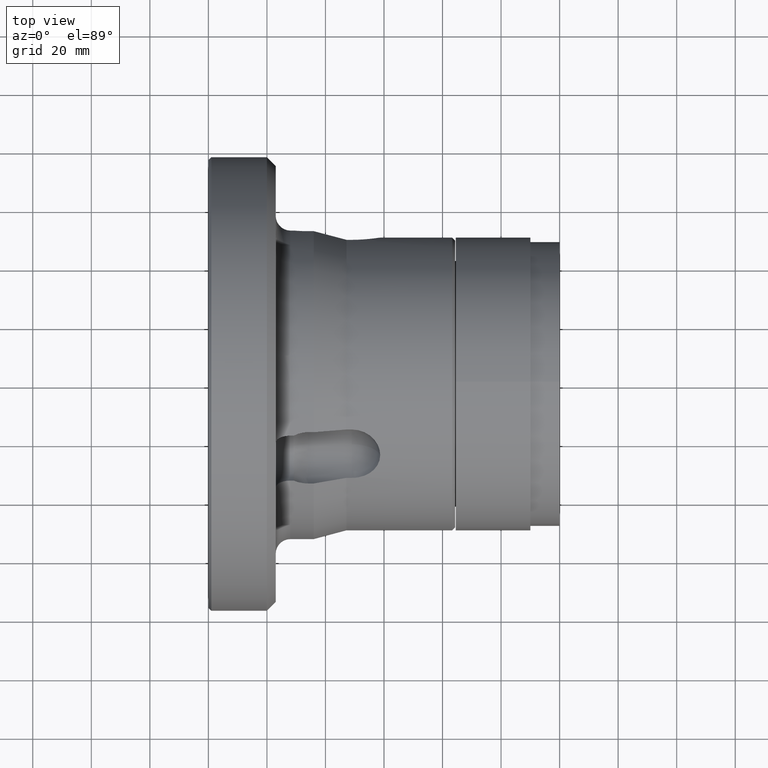
[diagram: clean part render]
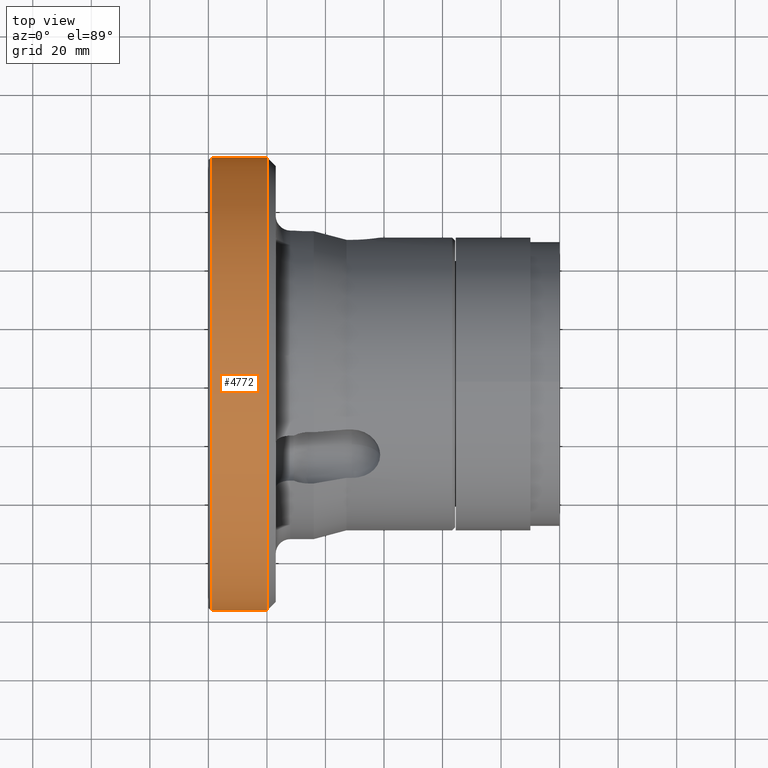
[diagram: same view with one face highlighted and labeled with its STEP entity id]
A machine part, top view. The second image highlights one B-rep face of the part: STEP entity #4772.
In plain terms, the highlighted cylindrical surface (partial cylindrical patch) has radius 77.5 mm, axis along (-1, 0, 0).
Its self-contained STEP definition (entity closure, byte-faithful):
#413 = VECTOR ( 'NONE', #2619, 1.000000000000000000 ) ;
#454 = CIRCLE ( 'NONE', #544, 0.07749999999999999900 ) ;
#544 = AXIS2_PLACEMENT_3D ( 'NONE', #2394, #2395, #2396 ) ;
#575 = VECTOR ( 'NONE', #2628, 1.000000000000000000 ) ;
#748 = EDGE_LOOP ( 'NONE', ( #4227, #4226, #4225, #4224 ) ) ;
#1427 = CARTESIAN_POINT ( 'NONE',  ( 0.0009999999999999447300, -8.469516582358558000E-036, 0.0000000000000000000 ) ) ;
#1428 = DIRECTION ( 'NONE',  ( 1.000000000000000000, -8.469516582359024900E-033, 0.0000000000000000000 ) ) ;
#1429 = DIRECTION ( 'NONE',  ( 0.0000000000000000000, 1.000000000000000000, 0.0000000000000000000 ) ) ;
#2394 = CARTESIAN_POINT ( 'NONE',  ( 0.01999999999999996900, -1.693903316471802700E-034, 0.0000000000000000000 ) ) ;
#2395 = DIRECTION ( 'NONE',  ( -1.000000000000000000, 8.469516582359031800E-033, -0.0000000000000000000 ) ) ;
#2396 = DIRECTION ( 'NONE',  ( 0.0000000000000000000, -1.000000000000000000, 0.0000000000000000000 ) ) ;
#2611 = CARTESIAN_POINT ( 'NONE',  ( -6.563875351328245400E-034, -0.07749999999999999900, 0.0000000000000000000 ) ) ;
#2614 = LINE ( 'NONE', #2611, #413 ) ;
#2619 = DIRECTION ( 'NONE',  ( -1.000000000000000000, 8.469516582359026300E-033, -0.0000000000000000000 ) ) ;
#2620 = CARTESIAN_POINT ( 'NONE',  ( 6.563875351328245400E-034, 0.07749999999999999900, 9.491012693391987900E-018 ) ) ;
#2624 = LINE ( 'NONE', #2620, #575 ) ;
#2628 = DIRECTION ( 'NONE',  ( -1.000000000000000000, 8.469516582359026300E-033, -0.0000000000000000000 ) ) ;
#3668 = EDGE_CURVE ( 'NONE', #5228, #5310, #454, .T. ) ;
#3714 = EDGE_CURVE ( 'NONE', #5228, #5374, #2614, .T. ) ;
#3717 = EDGE_CURVE ( 'NONE', #5310, #5427, #2624, .T. ) ;
#3973 = AXIS2_PLACEMENT_3D ( 'NONE', #1427, #1428, #1429 ) ;
#4006 = CIRCLE ( 'NONE', #3973, 0.07749999999999999900 ) ;
#4224 = ORIENTED_EDGE ( 'NONE', *, *, #3714, .F. ) ;
#4225 = ORIENTED_EDGE ( 'NONE', *, *, #4508, .T. ) ;
#4226 = ORIENTED_EDGE ( 'NONE', *, *, #3717, .T. ) ;
#4227 = ORIENTED_EDGE ( 'NONE', *, *, #3668, .T. ) ;
#4508 = EDGE_CURVE ( 'NONE', #5427, #5374, #4006, .T. ) ;
#4772 = ADVANCED_FACE ( 'NONE', ( #6005 ), #6008, .T. ) ;
#5076 = AXIS2_PLACEMENT_3D ( 'NONE', #6006, #6002, #6009 ) ;
#5228 = VERTEX_POINT ( 'NONE', #6578 ) ;
#5310 = VERTEX_POINT ( 'NONE', #6597 ) ;
#5374 = VERTEX_POINT ( 'NONE', #6617 ) ;
#5427 = VERTEX_POINT ( 'NONE', #6633 ) ;
#6002 = DIRECTION ( 'NONE',  ( -1.000000000000000000, 8.469516582359026300E-033, -0.0000000000000000000 ) ) ;
#6005 = FACE_OUTER_BOUND ( 'NONE', #748, .T. ) ;
#6006 = CARTESIAN_POINT ( 'NONE',  ( 0.0000000000000000000, 0.0000000000000000000, 0.0000000000000000000 ) ) ;
#6008 = CYLINDRICAL_SURFACE ( 'NONE', #5076, 0.07749999999999999900 ) ;
#6009 = DIRECTION ( 'NONE',  ( -8.469516582359026300E-033, -1.000000000000000000, 0.0000000000000000000 ) ) ;
#6578 = CARTESIAN_POINT ( 'NONE',  ( 0.01999999999999996900, -0.07749999999999999900, 0.0000000000000000000 ) ) ;
#6597 = CARTESIAN_POINT ( 'NONE',  ( 0.01999999999999996900, 0.07749999999999999900, 9.491012693391987900E-018 ) ) ;
#6617 = CARTESIAN_POINT ( 'NONE',  ( 0.0009999999999999447300, -0.07749999999999999900, 0.0000000000000000000 ) ) ;
#6633 = CARTESIAN_POINT ( 'NONE',  ( 0.0009999999999999447300, 0.07749999999999999900, 9.491012693391987900E-018 ) ) ;